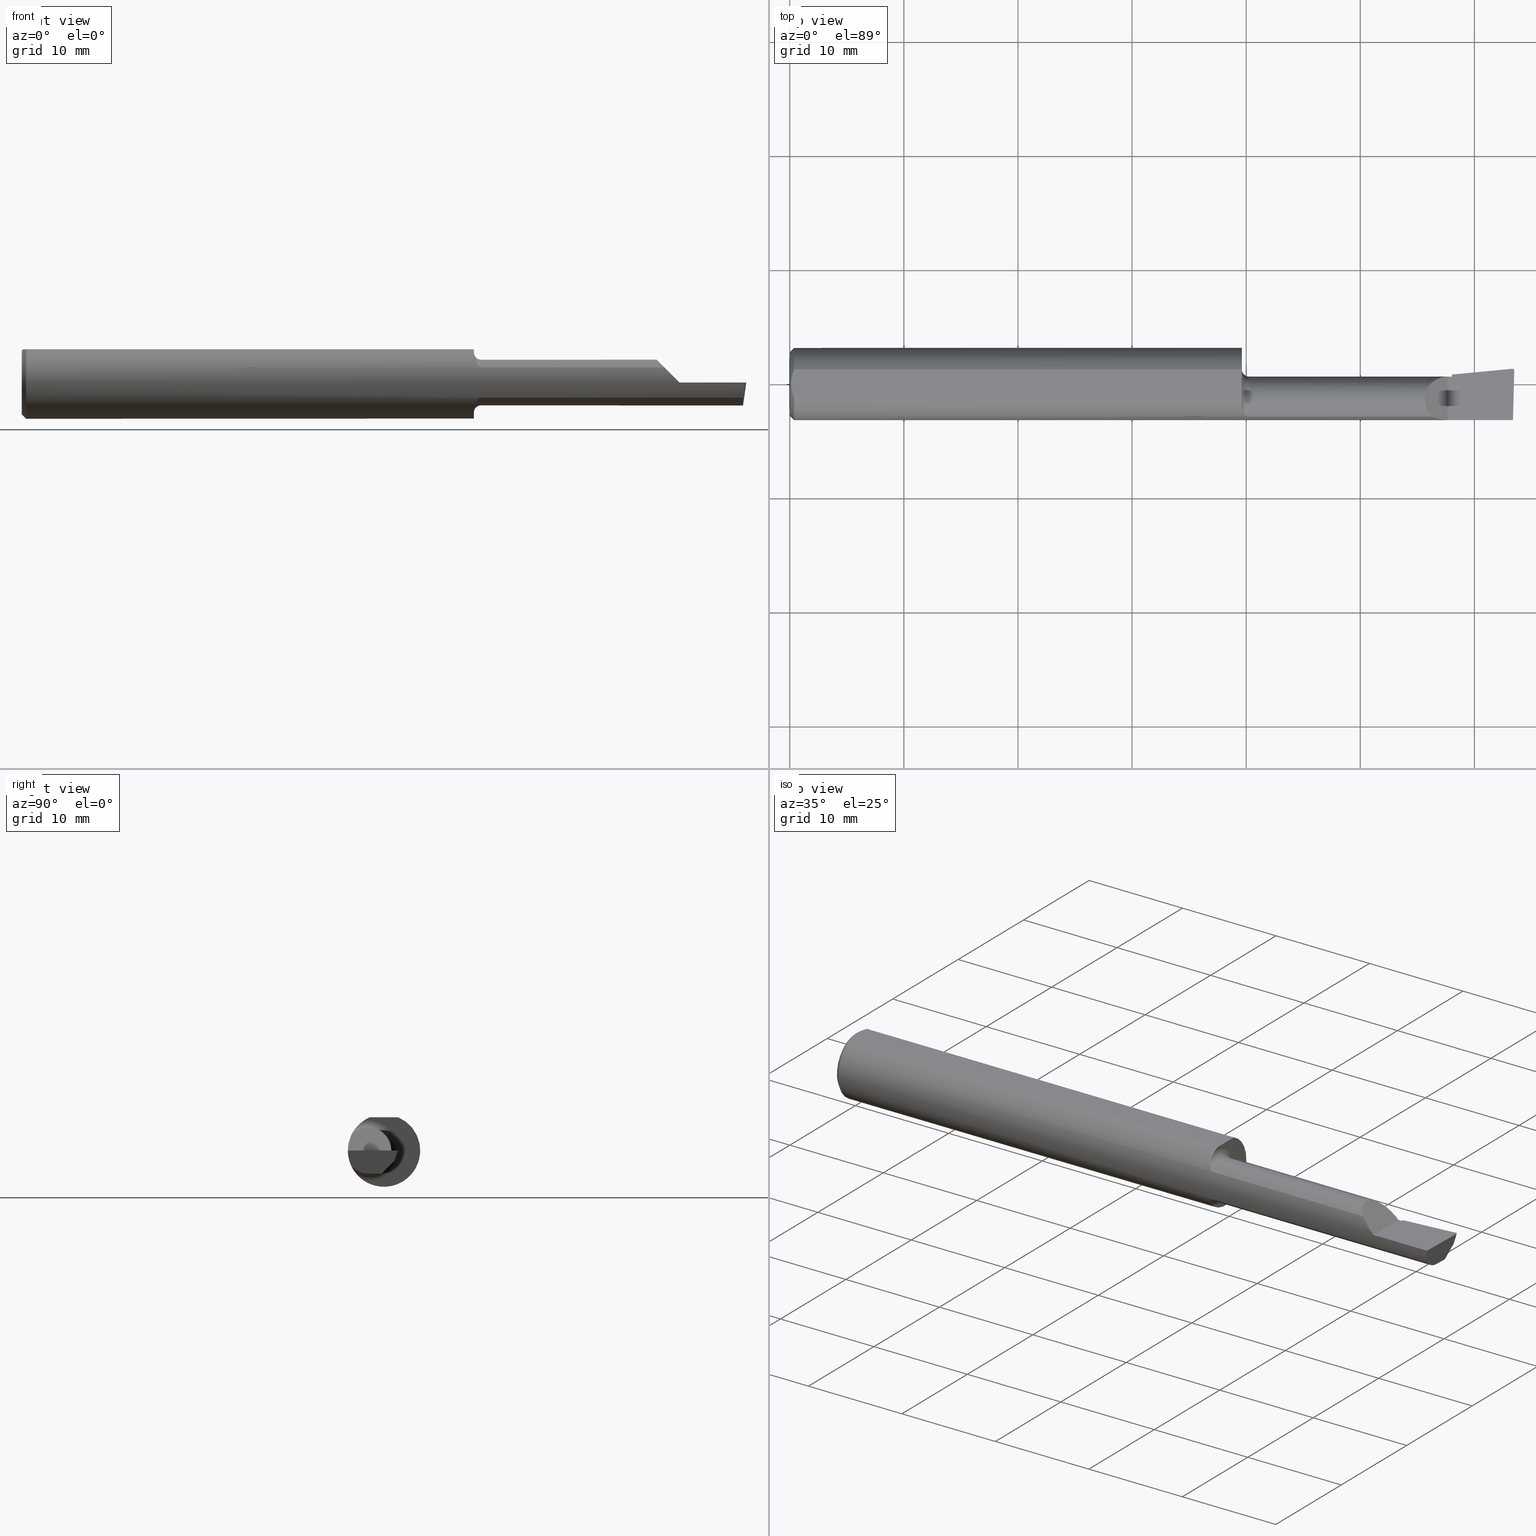
[diagram: canonical four-view strip — front | top / right | iso, engineering-drawing reading convention]
A machine part, canonical four-view strip (front | top / right | iso — engineering-drawing reading convention). The complete STEP part file that produces these views, byte-faithful:
ISO-10303-21;
HEADER;
FILE_DESCRIPTION (( 'STEP AP214' ),
    '1' );
FILE_NAME ('B180900R.STEP',
    '2020-05-08T22:48:41',
    ( '' ),
    ( '' ),
    'SwSTEP 2.0',
    'SolidWorks 2018',
    '' );
FILE_SCHEMA (( 'AUTOMOTIVE_DESIGN' ));
ENDSEC;

DATA;
#1 = CARTESIAN_POINT ( 'NONE',  ( 2.500000000000000000, 0.1748500000000000054, 0.1148500000000000076 ) ) ;
#2 =( NAMED_UNIT ( * ) SI_UNIT ( $, .STERADIAN. ) SOLID_ANGLE_UNIT ( ) );
#3 = VERTEX_POINT ( 'NONE', #16 ) ;
#4 = DIRECTION ( 'NONE',  ( 1.000000000000000000, 0.0000000000000000000, 0.0000000000000000000 ) ) ;
#5 = DIRECTION ( 'NONE',  ( 0.0000000000000000000, 0.9524855432518746223, -0.3045837978228342902 ) ) ;
#6 = EDGE_CURVE ( 'NONE', #158, #464, #121, .T. ) ;
#7 = SHAPE_DEFINITION_REPRESENTATION ( #553, #173 ) ;
#8 = CARTESIAN_POINT ( 'NONE',  ( 1.581867218484673376, -0.1130881303947560979, -0.05290831216931966147 ) ) ;
#9 = CARTESIAN_POINT ( 'NONE',  ( 0.005000000000000237761, 1.454187638523587873E-17, 0.1148500000000000076 ) ) ;
#10 = DIRECTION ( 'NONE',  ( -2.377784481325426399E-18, -0.6963153109074924352, -0.7177360153954949196 ) ) ;
#11 = EDGE_LOOP ( 'NONE', ( #334, #617, #608, #253 ) ) ;
#12 = AXIS2_PLACEMENT_3D ( 'NONE', #42, #296, #202 ) ;
#13 = DIRECTION ( 'NONE',  ( 1.000000000000000000, -3.414809992080329023E-18, 0.0000000000000000000 ) ) ;
#14 = VECTOR ( 'NONE', #669, 39.37007874015748143 ) ;
#15 = DIRECTION ( 'NONE',  ( 0.0000000000000000000, 0.0000000000000000000, 1.000000000000000000 ) ) ;
#16 = CARTESIAN_POINT ( 'NONE',  ( 1.560000000000000275, -0.07089166666666688044, 0.1027710761704001691 ) ) ;
#17 = ADVANCED_FACE ( 'NONE', ( #153 ), #470, .F. ) ;
#18 =( BOUNDED_CURVE ( )  B_SPLINE_CURVE ( 3, ( #439, #492, #452, #554 ),
 .UNSPECIFIED., .F., .F. ) 
 B_SPLINE_CURVE_WITH_KNOTS ( ( 4, 4 ),
 ( 5.435892245814752499, 7.853981633974484566 ),
 .UNSPECIFIED. ) 
 CURVE ( )  GEOMETRIC_REPRESENTATION_ITEM ( )  RATIONAL_B_SPLINE_CURVE ( ( 1.000000000000000000, 0.5692753596694920537, 0.5692753596694920537, 1.000000000000000000 ) ) 
 REPRESENTATION_ITEM ( '' )  );
#19 = CARTESIAN_POINT ( 'NONE',  ( 2.493823174557826317, 0.04399139898587250269, -0.02659586115756921651 ) ) ;
#20 = VERTEX_POINT ( 'NONE', #47 ) ;
#21 = DIRECTION ( 'NONE',  ( -1.000000000000000000, 3.414809992080329023E-18, 0.0000000000000000000 ) ) ;
#22 = CARTESIAN_POINT ( 'NONE',  ( 1.559999999999996723, -0.07604212793636101753, 0.09921827904968776035 ) ) ;
#23 = LINE ( 'NONE', #195, #167 ) ;
#24 = PLANE ( 'NONE',  #596 ) ;
#25 = VERTEX_POINT ( 'NONE', #385 ) ;
#26 = EDGE_LOOP ( 'NONE', ( #204, #431 ) ) ;
#27 = ORIENTED_EDGE ( 'NONE', *, *, #318, .F. ) ;
#28 = EDGE_CURVE ( 'NONE', #414, #618, #98, .T. ) ;
#29 = DIRECTION ( 'NONE',  ( -1.000000000000000000, 3.414809992080329023E-18, -0.0000000000000000000 ) ) ;
#30 = AXIS2_PLACEMENT_3D ( 'NONE', #137, #205, #151 ) ;
#31 = FACE_OUTER_BOUND ( 'NONE', #226, .T. ) ;
#32 = CARTESIAN_POINT ( 'NONE',  ( 2.234090882882975748, -0.1209466293052443159, 0.03590911711702327036 ) ) ;
#33 = ORIENTED_EDGE ( 'NONE', *, *, #577, .F. ) ;
#34 = CARTESIAN_POINT ( 'NONE',  ( 2.493310817358693754, 0.05249616680637383265, -5.124634811486028890E-17 ) ) ;
#35 = CARTESIAN_POINT ( 'NONE',  ( 0.01499999999999999424, 0.0000000000000000000, 0.0000000000000000000 ) ) ;
#36 = CARTESIAN_POINT ( 'NONE',  ( 0.01499999999999999424, 1.528971528735470422E-17, 0.1248500000000000026 ) ) ;
#37 = CARTESIAN_POINT ( 'NONE',  ( 1.560000000000000275, 0.1748500000000000054, 0.1148500000000000076 ) ) ;
#38 = DIRECTION ( 'NONE',  ( 0.0000000000000000000, 0.0000000000000000000, 1.000000000000000000 ) ) ;
#39 = AXIS2_PLACEMENT_3D ( 'NONE', #99, #149, #623 ) ;
#40 = LINE ( 'NONE', #141, #408 ) ;
#41 = CARTESIAN_POINT ( 'NONE',  ( 0.009410502401328815075, 0.03310661131402416191, 0.1148500000000000076 ) ) ;
#42 = CARTESIAN_POINT ( 'NONE',  ( 2.485278273515959313, -0.09572943287973835480, -0.08811753218725953962 ) ) ;
#43 = B_SPLINE_CURVE_WITH_KNOTS ( 'NONE', 3,
 ( #295, #512, #244, #41, #493, #75 ),
 .UNSPECIFIED., .F., .F.,
 ( 4, 2, 4 ),
 ( 0.002298356357403497086, 0.002932796277434359007, 0.003567236197465221362 ),
 .UNSPECIFIED. ) ;
#44 = EDGE_CURVE ( 'NONE', #618, #464, #177, .T. ) ;
#45 = CARTESIAN_POINT ( 'NONE',  ( 2.285000000000000142, 0.02514999999999996058, 9.802154982235647216E-16 ) ) ;
#46 = ORIENTED_EDGE ( 'NONE', *, *, #235, .T. ) ;
#47 = CARTESIAN_POINT ( 'NONE',  ( 2.492906680581910006, 0.05246699102467097114, -6.532122848641467145E-17 ) ) ;
#48 = ORIENTED_EDGE ( 'NONE', *, *, #555, .T. ) ;
#49 = VERTEX_POINT ( 'NONE', #620 ) ;
#50 = CARTESIAN_POINT ( 'NONE',  ( 1.560000000000000275, -0.07089166666666688044, -0.1027710761704001691 ) ) ;
#51 = VECTOR ( 'NONE', #240, 39.37007874015748854 ) ;
#52 = CARTESIAN_POINT ( 'NONE',  ( 1.560000000000000275, -0.04895916665957457392, 0.1148500000000000215 ) ) ;
#53 = FACE_OUTER_BOUND ( 'NONE', #26, .T. ) ;
#54 = CARTESIAN_POINT ( 'NONE',  ( 1.935000000000000053, -0.1133222222222223519, 0.05239843939104731063 ) ) ;
#55 = ORIENTED_EDGE ( 'NONE', *, *, #328, .T. ) ;
#56 = ORIENTED_EDGE ( 'NONE', *, *, #445, .T. ) ;
#57 = CARTESIAN_POINT ( 'NONE',  ( 2.285000000000000142, 0.03244785463752900695, 0.0000000000000000000 ) ) ;
#58 = LINE ( 'NONE', #181, #531 ) ;
#59 =( NAMED_UNIT ( * ) PLANE_ANGLE_UNIT ( ) SI_UNIT ( $, .RADIAN. ) );
#60 = LINE ( 'NONE', #54, #197 ) ;
#61 = LINE ( 'NONE', #335, #441 ) ;
#62 = DIRECTION ( 'NONE',  ( -1.000000000000000000, -0.0000000000000000000, -0.0000000000000000000 ) ) ;
#63 = DIRECTION ( 'NONE',  ( -0.1240019227990242501, -0.3022330132596687258, -0.9451342385281182867 ) ) ;
#64 = ORIENTED_EDGE ( 'NONE', *, *, #568, .F. ) ;
#65 = LENGTH_MEASURE_WITH_UNIT ( LENGTH_MEASURE( 0.02539999999999999897 ), #584 );
#66 = CARTESIAN_POINT ( 'NONE',  ( 0.01195732443765553168, -0.04120008761723500251, 0.1148500000000000215 ) ) ;
#67 = LINE ( 'NONE', #337, #376 ) ;
#68 = VECTOR ( 'NONE', #123, 39.37007874015748143 ) ;
#69 = EDGE_CURVE ( 'NONE', #103, #482, #637, .T. ) ;
#70 = CIRCLE ( 'NONE', #30, 0.1098499999999996424 ) ;
#71 = CARTESIAN_POINT ( 'NONE',  ( 2.477503890861344260, 0.007285921144409695030, -0.1200395610706566918 ) ) ;
#72 = ORIENTED_EDGE ( 'NONE', *, *, #433, .F. ) ;
#73 = MANIFOLD_SOLID_BREP ( 'BDF21A87-9C5D-4e39-A953-442CED5A3D4D-GAAFaceID16', #233 ) ;
#74 = EDGE_LOOP ( 'NONE', ( #567, #398, #593, #633 ) ) ;
#75 = CARTESIAN_POINT ( 'NONE',  ( 0.01499999999999999424, 0.04895916665957457392, 0.1148500000000000076 ) ) ;
#76 = CARTESIAN_POINT ( 'NONE',  ( 1.585000000000000187, -0.05399999999999999939, 0.0000000000000000000 ) ) ;
#77 = LINE ( 'NONE', #355, #90 ) ;
#78 = AXIS2_PLACEMENT_3D ( 'NONE', #412, #92, #476 ) ;
#79 = ORIENTED_EDGE ( 'NONE', *, *, #242, .T. ) ;
#80 = EDGE_CURVE ( 'NONE', #336, #486, #140, .T. ) ;
#81 = ORIENTED_EDGE ( 'NONE', *, *, #467, .F. ) ;
#82 = CARTESIAN_POINT ( 'NONE',  ( 2.494935772196837487, 0.03388506613407608892, -0.03712352112763148831 ) ) ;
#83 = LINE ( 'NONE', #605, #51 ) ;
#84 = EDGE_CURVE ( 'NONE', #186, #414, #550, .T. ) ;
#85 = ORIENTED_EDGE ( 'NONE', *, *, #169, .T. ) ;
#86 = ORIENTED_EDGE ( 'NONE', *, *, #248, .T. ) ;
#87 = ORIENTED_EDGE ( 'NONE', *, *, #467, .T. ) ;
#88 = VECTOR ( 'NONE', #118, 39.37007874015748143 ) ;
#89 = CARTESIAN_POINT ( 'NONE',  ( 2.285000000000000142, 0.01818157456899024971, -0.03247372465149767073 ) ) ;
#90 = VECTOR ( 'NONE', #347, 39.37007874015748143 ) ;
#91 = MECHANICAL_DESIGN_GEOMETRIC_PRESENTATION_REPRESENTATION (  '', ( #522 ), #297 ) ;
#92 = DIRECTION ( 'NONE',  ( 4.858719700838190352E-34, 8.537024980200821325E-17, 1.000000000000000000 ) ) ;
#93 = ORIENTED_EDGE ( 'NONE', *, *, #607, .T. ) ;
#94 = CARTESIAN_POINT ( 'NONE',  ( 1.578003366130775520, -0.1118869025553488189, 0.05540929543234566351 ) ) ;
#95 = VERTEX_POINT ( 'NONE', #263 ) ;
#96 = VECTOR ( 'NONE', #193, 39.37007874015748854 ) ;
#97 = DIRECTION ( 'NONE',  ( -1.000000000000000000, -0.0000000000000000000, -0.0000000000000000000 ) ) ;
#98 = B_SPLINE_CURVE_WITH_KNOTS ( 'NONE', 3,
 ( #665, #223, #8, #417, #363, #420, #269, #122, #115, #629, #472, #371, #432, #256 ),
 .UNSPECIFIED., .F., .F.,
 ( 4, 2, 2, 2, 2, 2, 4 ),
 ( 1.961860195742902937E-07, 0.0001199556417434004984, 0.0002397150974672266905, 0.0004792340089148647633, 0.0009582718318101505041, 0.001437309654705436462, 0.001916347477600722094 ),
 .UNSPECIFIED. ) ;
#99 = CARTESIAN_POINT ( 'NONE',  ( 2.500000000000000000, -0.2500000000000000555, -6.829619984160658046E-17 ) ) ;
#100 = LINE ( 'NONE', #36, #273 ) ;
#101 = B_SPLINE_CURVE_WITH_KNOTS ( 'NONE', 3,
 ( #289, #22, #447, #396, #642, #409, #489, #144, #215, #94, #160, #313, #560, #557 ),
 .UNSPECIFIED., .F., .F.,
 ( 4, 2, 2, 2, 2, 2, 4 ),
 ( 6.218642020841720630E-05, 0.0005341583913332135190, 0.001006130362458009832, 0.001478102333582805711, 0.001714088319145208638, 0.001832081311926402837, 0.001950074304707597470 ),
 .UNSPECIFIED. ) ;
#102 = DIRECTION ( 'NONE',  ( 0.7071067811865390240, 8.659560562355036396E-17, 0.7071067811865560104 ) ) ;
#103 = VERTEX_POINT ( 'NONE', #468 ) ;
#104 = ORIENTED_EDGE ( 'NONE', *, *, #28, .F. ) ;
#105 = VERTEX_POINT ( 'NONE', #157 ) ;
#106 = DIRECTION ( 'NONE',  ( 1.000000000000000000, -3.414809992080329023E-18, 0.0000000000000000000 ) ) ;
#107 = PLANE ( 'NONE',  #393 ) ;
#108 = DIRECTION ( 'NONE',  ( -1.000000000000000000, 3.414809992080329023E-18, 0.0000000000000000000 ) ) ;
#109 = ORIENTED_EDGE ( 'NONE', *, *, #286, .T. ) ;
#110 = ORIENTED_EDGE ( 'NONE', *, *, #169, .F. ) ;
#111 = CONICAL_SURFACE ( 'NONE', #520, 0.1248500000000000026, 0.7853981633974602694 ) ;
#112 = CARTESIAN_POINT ( 'NONE',  ( 0.01499999999999999424, 0.0000000000000000000, -0.1248500000000000026 ) ) ;
#113 = EDGE_CURVE ( 'NONE', #158, #634, #325, .T. ) ;
#114 = DIRECTION ( 'NONE',  ( 0.0000000000000000000, 0.0000000000000000000, -1.000000000000000000 ) ) ;
#115 = CARTESIAN_POINT ( 'NONE',  ( 1.566709462345916570, -0.1014961360546400848, -0.07295290821911699919 ) ) ;
#116 = DIRECTION ( 'NONE',  ( 1.000000000000000000, 0.0000000000000000000, 0.0000000000000000000 ) ) ;
#117 = AXIS2_PLACEMENT_3D ( 'NONE', #640, #234, #558 ) ;
#118 = DIRECTION ( 'NONE',  ( 1.000000000000000000, 0.0000000000000000000, 0.0000000000000000000 ) ) ;
#119 = VERTEX_POINT ( 'NONE', #559 ) ;
#120 = ORIENTED_EDGE ( 'NONE', *, *, #651, .T. ) ;
#121 = LINE ( 'NONE', #429, #88 ) ;
#122 = CARTESIAN_POINT ( 'NONE',  ( 1.568837986083220226, -0.1048226606062678534, -0.06804511026469603485 ) ) ;
#123 = DIRECTION ( 'NONE',  ( 0.0000000000000000000, 1.000000000000000000, -8.537024980200821325E-17 ) ) ;
#124 = LINE ( 'NONE', #538, #648 ) ;
#125 = ADVANCED_FACE ( 'NONE', ( #514 ), #410, .F. ) ;
#126 = DIRECTION ( 'NONE',  ( 0.0000000000000000000, -1.000000000000000000, 0.0000000000000000000 ) ) ;
#127 = DIRECTION ( 'NONE',  ( -0.1240019227990242223, -0.3022330132596686703, -0.9451342385281181757 ) ) ;
#128 = LENGTH_MEASURE_WITH_UNIT ( LENGTH_MEASURE( 0.02539999999999999897 ), #510 );
#129 = ADVANCED_FACE ( 'NONE', ( #142 ), #351, .F. ) ;
#130 = AXIS2_PLACEMENT_3D ( 'NONE', #406, #343, #189 ) ;
#131 = FACE_OUTER_BOUND ( 'NONE', #641, .T. ) ;
#132 = VECTOR ( 'NONE', #503, 39.37007874015748854 ) ;
#133 = CARTESIAN_POINT ( 'NONE',  ( 2.285000000000000142, -0.01935479767416500504, -0.07116482597324289006 ) ) ;
#134 = ORIENTED_EDGE ( 'NONE', *, *, #191, .F. ) ;
#135 = EDGE_CURVE ( 'NONE', #597, #49, #350, .T. ) ;
#136 = ORIENTED_EDGE ( 'NONE', *, *, #416, .F. ) ;
#137 = CARTESIAN_POINT ( 'NONE',  ( 0.0000000000000000000, 0.0000000000000000000, 0.0000000000000000000 ) ) ;
#138 = ADVANCED_FACE ( 'NONE', ( #179 ), #485, .T. ) ;
#139 = CARTESIAN_POINT ( 'NONE',  ( 2.251833290544947630, -0.1248500000000000165, 0.01816670945505163143 ) ) ;
#140 = LINE ( 'NONE', #304, #346 ) ;
#141 = CARTESIAN_POINT ( 'NONE',  ( 2.285000000000000142, 0.005014495618354278261, -0.04604586163080774674 ) ) ;
#142 = FACE_OUTER_BOUND ( 'NONE', #364, .T. ) ;
#143 =( BOUNDED_CURVE ( )  B_SPLINE_CURVE ( 3, ( #582, #219, #612, #260 ),
 .UNSPECIFIED., .F., .F. ) 
 B_SPLINE_CURVE_WITH_KNOTS ( ( 4, 4 ),
 ( 1.953092279228668682, 3.511516179717975472 ),
 .UNSPECIFIED. ) 
 CURVE ( )  GEOMETRIC_REPRESENTATION_ITEM ( )  RATIONAL_B_SPLINE_CURVE ( ( 1.000000000000000000, 0.8076450242550295977, 0.8076450242550295977, 1.000000000000000000 ) ) 
 REPRESENTATION_ITEM ( '' )  );
#144 = CARTESIAN_POINT ( 'NONE',  ( 1.573217602974940066, -0.1090277136498278843, 0.06089509507572534591 ) ) ;
#145 = ORIENTED_EDGE ( 'NONE', *, *, #533, .T. ) ;
#146 = CARTESIAN_POINT ( 'NONE',  ( 0.0000000000000000000, 0.0000000000000000000, 0.0000000000000000000 ) ) ;
#147 = DIRECTION ( 'NONE',  ( -3.414809992080329023E-18, -1.000000000000000000, 0.0000000000000000000 ) ) ;
#148 = DIRECTION ( 'NONE',  ( -1.000000000000000000, -0.0000000000000000000, -0.0000000000000000000 ) ) ;
#149 = DIRECTION ( 'NONE',  ( -4.194046792260684025E-16, 0.0000000000000000000, -1.000000000000000000 ) ) ;
#150 = PLANE ( 'NONE',  #481 ) ;
#151 = DIRECTION ( 'NONE',  ( 0.0000000000000000000, 0.0000000000000000000, 1.000000000000000000 ) ) ;
#152 = ORIENTED_EDGE ( 'NONE', *, *, #6, .T. ) ;
#153 = FACE_OUTER_BOUND ( 'NONE', #624, .T. ) ;
#154 = AXIS2_PLACEMENT_3D ( 'NONE', #146, #97, #611 ) ;
#155 = DIRECTION ( 'NONE',  ( 0.0000000000000000000, 1.000000000000000000, 0.0000000000000000000 ) ) ;
#156 = DIRECTION ( 'NONE',  ( -0.02617694830793667118, -0.9996573249755555945, 8.535148296544268902E-17 ) ) ;
#157 = CARTESIAN_POINT ( 'NONE',  ( 2.487472449114545014, -0.05399999999999999939, -0.07914999999999994262 ) ) ;
#158 = VERTEX_POINT ( 'NONE', #509 ) ;
#159 = LINE ( 'NONE', #601, #542 ) ;
#160 = CARTESIAN_POINT ( 'NONE',  ( 1.579156347344548239, -0.1123603976562050771, 0.05443691454869342000 ) ) ;
#161 = CARTESIAN_POINT ( 'NONE',  ( 2.486868858499483803, -0.07705019563525719595, -0.07914999999999994262 ) ) ;
#162 = FACE_OUTER_BOUND ( 'NONE', #319, .T. ) ;
#163 = CONICAL_SURFACE ( 'NONE', #130, 0.1248500000000000026, 0.7853981633974602694 ) ;
#164 = AXIS2_PLACEMENT_3D ( 'NONE', #76, #603, #453 ) ;
#165 = ORIENTED_EDGE ( 'NONE', *, *, #208, .F. ) ;
#166 = ORIENTED_EDGE ( 'NONE', *, *, #191, .T. ) ;
#167 = VECTOR ( 'NONE', #267, 39.37007874015748854 ) ;
#168 = CARTESIAN_POINT ( 'NONE',  ( 2.509953961983671711, 0.05410845752520201946, -6.829619984160658046E-17 ) ) ;
#169 = EDGE_CURVE ( 'NONE', #211, #220, #314, .T. ) ;
#170 = DIRECTION ( 'NONE',  ( -0.9953961983671800740, -0.09584575252021031166, 0.0000000000000000000 ) ) ;
#171 = DIRECTION ( 'NONE',  ( 0.0000000000000000000, 0.0000000000000000000, -1.000000000000000000 ) ) ;
#172 = AXIS2_PLACEMENT_3D ( 'NONE', #630, #615, #614 ) ;
#173 = ADVANCED_BREP_SHAPE_REPRESENTATION ( 'B180900R', ( #73, #426 ), #370 ) ;
#174 = AXIS2_PLACEMENT_3D ( 'NONE', #661, #606, #650 ) ;
#175 = CARTESIAN_POINT ( 'NONE',  ( 2.492906680581910006, 0.05246699102467097114, -6.532122848641467145E-17 ) ) ;
#176 = ORIENTED_EDGE ( 'NONE', *, *, #594, .F. ) ;
#177 = CIRCLE ( 'NONE', #484, 0.1248500000000000026 ) ;
#178 = AXIS2_PLACEMENT_3D ( 'NONE', #643, #21, #147 ) ;
#179 = FACE_OUTER_BOUND ( 'NONE', #185, .T. ) ;
#180 = ADVANCED_FACE ( 'NONE', ( #236 ), #506, .F. ) ;
#181 = CARTESIAN_POINT ( 'NONE',  ( 2.500000000000000000, -0.05399999999999999939, -0.07914999999999994262 ) ) ;
#182 = EDGE_CURVE ( 'NONE', #20, #336, #77, .T. ) ;
#183 = VERTEX_POINT ( 'NONE', #654 ) ;
#184 = DIRECTION ( 'NONE',  ( 0.0000000000000000000, -1.000000000000000000, 0.0000000000000000000 ) ) ;
#185 = EDGE_LOOP ( 'NONE', ( #645, #166, #86, #239, #655, #81, #64, #48, #136, #488, #152, #382, #104 ) ) ;
#186 = VERTEX_POINT ( 'NONE', #247 ) ;
#187 = CIRCLE ( 'NONE', #172, 0.07914999999999995650 ) ;
#188 = AXIS2_PLACEMENT_3D ( 'NONE', #438, #547, #184 ) ;
#189 = DIRECTION ( 'NONE',  ( 0.0000000000000000000, 0.0000000000000000000, -1.000000000000000000 ) ) ;
#190 = CARTESIAN_POINT ( 'NONE',  ( 2.270000000000000018, -0.1248500000000000165, 2.816687638038912303E-17 ) ) ;
#191 = EDGE_CURVE ( 'NONE', #183, #25, #329, .T. ) ;
#192 = ORIENTED_EDGE ( 'NONE', *, *, #368, .F. ) ;
#193 = DIRECTION ( 'NONE',  ( 0.1240019227990242223, 0.3022330132596687258, 0.9451342385281181757 ) ) ;
#194 = PRESENTATION_STYLE_ASSIGNMENT (( #460 ) ) ;
#195 = CARTESIAN_POINT ( 'NONE',  ( 2.285000000000000142, 0.02898381944558133666, -0.01127818590082938985 ) ) ;
#196 = DIRECTION ( 'NONE',  ( 1.000000000000000000, -3.414809992080329023E-18, 0.0000000000000000000 ) ) ;
#197 = VECTOR ( 'NONE', #106, 39.37007874015748143 ) ;
#198 = FACE_OUTER_BOUND ( 'NONE', #271, .T. ) ;
#199 = CARTESIAN_POINT ( 'NONE',  ( 2.285000000000000142, -0.05399999999999999939, -0.07914999999999994262 ) ) ;
#200 = CARTESIAN_POINT ( 'NONE',  ( 2.495458699183907392, -0.006836787764517319663, -0.07914999999999994262 ) ) ;
#201 = CARTESIAN_POINT ( 'NONE',  ( 0.01499999999999999424, 0.0000000000000000000, 0.0000000000000000000 ) ) ;
#202 = DIRECTION ( 'NONE',  ( 0.1219104985253571388, 0.0000000000000000000, 0.9925410975618585985 ) ) ;
#203 = B_SPLINE_CURVE_WITH_KNOTS ( 'NONE', 3,
 ( #405, #66, #469, #662, #473, #574 ),
 .UNSPECIFIED., .F., .F.,
 ( 4, 2, 4 ),
 ( 0.001029394377391489035, 0.001663875367397493060, 0.002298356357403497086 ),
 .UNSPECIFIED. ) ;
#204 = ORIENTED_EDGE ( 'NONE', *, *, #303, .T. ) ;
#205 = DIRECTION ( 'NONE',  ( -1.000000000000000000, -0.0000000000000000000, -0.0000000000000000000 ) ) ;
#206 = CARTESIAN_POINT ( 'NONE',  ( 2.488690395572167979, -0.007488501277203572434, -0.07914999999999995650 ) ) ;
#207 = FACE_OUTER_BOUND ( 'NONE', #430, .T. ) ;
#208 = EDGE_CURVE ( 'NONE', #597, #666, #500, .T. ) ;
#209 = ORIENTED_EDGE ( 'NONE', *, *, #242, .F. ) ;
#210 = FILL_AREA_STYLE ('',( #270 ) ) ;
#211 = VERTEX_POINT ( 'NONE', #291 ) ;
#212 = SURFACE_STYLE_FILL_AREA ( #249 ) ;
#213 = AXIS2_PLACEMENT_3D ( 'NONE', #545, #590, #595 ) ;
#214 =( BOUNDED_CURVE ( )  B_SPLINE_CURVE ( 3, ( #647, #19, #649, #82 ),
 .UNSPECIFIED., .F., .F. ) 
 B_SPLINE_CURVE_WITH_KNOTS ( ( 4, 4 ),
 ( 3.156599629463092693, 4.715023529952360626 ),
 .UNSPECIFIED. ) 
 CURVE ( )  GEOMETRIC_REPRESENTATION_ITEM ( )  RATIONAL_B_SPLINE_CURVE ( ( 1.000000000000000000, 0.8076450242550388126, 0.8076450242550388126, 1.000000000000000000 ) ) 
 REPRESENTATION_ITEM ( '' )  );
#215 = CARTESIAN_POINT ( 'NONE',  ( 1.574891482046761437, -0.1103130882036816862, 0.05851436580809123850 ) ) ;
#216 = CARTESIAN_POINT ( 'NONE',  ( 2.285000000000000142, 0.005014495618354278261, -0.04604586163080774674 ) ) ;
#217 = ADVANCED_FACE ( 'NONE', ( #369 ), #163, .T. ) ;
#218 = EDGE_LOOP ( 'NONE', ( #639, #436, #241, #288, #120 ) ) ;
#219 = CARTESIAN_POINT ( 'NONE',  ( 2.499910038027521875, 0.04971449087509938192, -5.401409214261198838E-17 ) ) ;
#220 = VERTEX_POINT ( 'NONE', #287 ) ;
#221 = EDGE_CURVE ( 'NONE', #399, #20, #387, .T. ) ;
#222 = DIRECTION ( 'NONE',  ( 1.000000000000000000, 0.0000000000000000000, 0.0000000000000000000 ) ) ;
#223 = CARTESIAN_POINT ( 'NONE',  ( 1.583397973893800659, -0.1133222222222222964, -0.05239843939104738696 ) ) ;
#224 = SURFACE_SIDE_STYLE ('',( #540 ) ) ;
#225 = ORIENTED_EDGE ( 'NONE', *, *, #69, .T. ) ;
#226 = EDGE_LOOP ( 'NONE', ( #326, #254, #442, #93, #79, #225, #356, #374, #525, #413 ) ) ;
#227 = COLOUR_RGB ( '',0.7529411764705882248, 0.7529411764705882248, 0.7529411764705882248 ) ;
#228 = EDGE_CURVE ( 'NONE', #546, #507, #498, .T. ) ;
#229 = PRODUCT_RELATED_PRODUCT_CATEGORY ( 'part', '', ( #352 ) ) ;
#230 = DIRECTION ( 'NONE',  ( 0.0000000000000000000, 0.0000000000000000000, 1.000000000000000000 ) ) ;
#231 = CARTESIAN_POINT ( 'NONE',  ( 1.560000000000000275, 0.04895916665957456004, 0.1148500000000000076 ) ) ;
#232 = EDGE_LOOP ( 'NONE', ( #87, #599, #320, #299 ) ) ;
#233 = CLOSED_SHELL ( 'NONE', ( #237, #217, #532, #339, #638, #138, #17, #539, #129, #587, #589, #125, #338, #549, #592, #628, #331, #180, #632 ) ) ;
#234 = DIRECTION ( 'NONE',  ( -0.1240019227990242501, -0.3022330132596687258, -0.9451342385281182867 ) ) ;
#235 = EDGE_CURVE ( 'NONE', #220, #211, #70, .T. ) ;
#236 = FACE_OUTER_BOUND ( 'NONE', #475, .T. ) ;
#237 = ADVANCED_FACE ( 'NONE', ( #198 ), #440, .T. ) ;
#238 = EDGE_CURVE ( 'NONE', #220, #634, #580, .T. ) ;
#239 = ORIENTED_EDGE ( 'NONE', *, *, #228, .T. ) ;
#240 = DIRECTION ( 'NONE',  ( 0.02617694830793667465, 0.9996573249755555945, -1.081567693923466137E-17 ) ) ;
#241 = ORIENTED_EDGE ( 'NONE', *, *, #238, .T. ) ;
#242 = EDGE_CURVE ( 'NONE', #507, #103, #18, .T. ) ;
#243 = VERTEX_POINT ( 'NONE', #133 ) ;
#244 = CARTESIAN_POINT ( 'NONE',  ( 0.005947935873631425563, 0.01679708999422678192, 0.1148499999999999938 ) ) ;
#245 = CARTESIAN_POINT ( 'NONE',  ( 2.510715839651727954, 0.04619605541595013520, -0.02600000000000000228 ) ) ;
#246 = CARTESIAN_POINT ( 'NONE',  ( 2.493107549887202623, -0.1248500000000000026, -0.01816670945505170429 ) ) ;
#247 = CARTESIAN_POINT ( 'NONE',  ( 1.585000000000000187, -0.1133222222222222825, 0.05239843939104733145 ) ) ;
#248 = EDGE_CURVE ( 'NONE', #25, #546, #586, .T. ) ;
#249 = FILL_AREA_STYLE ('',( #379 ) ) ;
#250 = CARTESIAN_POINT ( 'NONE',  ( 2.489495472034650714, 0.04415276641570021338, -0.02600000000000000228 ) ) ;
#251 = VERTEX_POINT ( 'NONE', #275 ) ;
#252 = AXIS2_PLACEMENT_3D ( 'NONE', #404, #487, #126 ) ;
#253 = ORIENTED_EDGE ( 'NONE', *, *, #491, .F. ) ;
#254 = ORIENTED_EDGE ( 'NONE', *, *, #458, .T. ) ;
#255 = DIRECTION ( 'NONE',  ( -0.0000000000000000000, 1.000000000000000000, -0.0000000000000000000 ) ) ;
#256 = CARTESIAN_POINT ( 'NONE',  ( 1.560000000000000275, -0.07089166666666688044, -0.1027710761704001691 ) ) ;
#257 = APPLICATION_PROTOCOL_DEFINITION ( 'draft international standard', 'automotive_design', 1998, #264 ) ;
#258 =( BOUNDED_CURVE ( )  B_SPLINE_CURVE ( 3, ( #622, #310, #619, #511 ),
 .UNSPECIFIED., .F., .T. ) 
 B_SPLINE_CURVE_WITH_KNOTS ( ( 4, 4 ),
 ( 3.064097098354486182, 3.156599629463092693 ),
 .UNSPECIFIED. ) 
 CURVE ( )  GEOMETRIC_REPRESENTATION_ITEM ( )  RATIONAL_B_SPLINE_CURVE ( ( 1.000000000000000000, 0.9992870672494007511, 0.9992870672494007511, 1.000000000000000000 ) ) 
 REPRESENTATION_ITEM ( '' )  );
#259 = EDGE_CURVE ( 'NONE', #307, #243, #40, .T. ) ;
#260 = CARTESIAN_POINT ( 'NONE',  ( 2.493512870449331675, 0.05249616680637383959, -5.122214988120493535E-17 ) ) ;
#261 = VECTOR ( 'NONE', #255, 39.37007874015748143 ) ;
#262 = STYLED_ITEM ( 'NONE', ( #332 ), #173 ) ;
#263 = CARTESIAN_POINT ( 'NONE',  ( 2.285000000000000142, -0.05399999999999999939, -0.07914999999999994262 ) ) ;
#264 = APPLICATION_CONTEXT ( 'automotive_design' ) ;
#265 = ORIENTED_EDGE ( 'NONE', *, *, #278, .F. ) ;
#266 = LINE ( 'NONE', #465, #480 ) ;
#267 = DIRECTION ( 'NONE',  ( -1.002614254341036985E-18, -0.2936076258024056806, -0.9559260233253797923 ) ) ;
#268 = AXIS2_PLACEMENT_3D ( 'NONE', #613, #196, #400 ) ;
#269 = CARTESIAN_POINT ( 'NONE',  ( 1.573205018706407499, -0.1090156405642971477, -0.06091562844815642808 ) ) ;
#270 = FILL_AREA_STYLE_COLOUR ( '', #462 ) ;
#271 = EDGE_LOOP ( 'NONE', ( #280, #56, #496, #274 ) ) ;
#272 = PRODUCT_DEFINITION ( 'UNKNOWN', '', #552, #344 ) ;
#273 = VECTOR ( 'NONE', #102, 39.37007874015748143 ) ;
#274 = ORIENTED_EDGE ( 'NONE', *, *, #182, .F. ) ;
#275 = CARTESIAN_POINT ( 'NONE',  ( 0.01499999999999999077, -0.04895916665957456004, 0.1148500000000000215 ) ) ;
#276 = CARTESIAN_POINT ( 'NONE',  ( 4.111069666048746882E-31, -0.1248499999999999888, 9.802154982235641300E-16 ) ) ;
#277 = LINE ( 'NONE', #199, #68 ) ;
#278 = EDGE_CURVE ( 'NONE', #243, #95, #572, .T. ) ;
#279 = CARTESIAN_POINT ( 'NONE',  ( 0.01499999999999999424, 0.0000000000000000000, 0.0000000000000000000 ) ) ;
#280 = ORIENTED_EDGE ( 'NONE', *, *, #221, .F. ) ;
#281 = EDGE_LOOP ( 'NONE', ( #372, #653, #397, #176, #389, #635, #327, #448 ) ) ;
#282 = CARTESIAN_POINT ( 'NONE',  ( 2.500086462864390846, 0.04643897437746657975, 0.002134693520066783482 ) ) ;
#283 = VECTOR ( 'NONE', #345, 39.37007874015748143 ) ;
#284 = CARTESIAN_POINT ( 'NONE',  ( 2.217601560608951861, -0.1133222222222222686, 0.05239843939104743553 ) ) ;
#285 = LINE ( 'NONE', #604, #261 ) ;
#286 = EDGE_CURVE ( 'NONE', #3, #618, #530, .T. ) ;
#287 = CARTESIAN_POINT ( 'NONE',  ( 0.0000000000000000000, 0.0000000000000000000, -0.1098499999999996424 ) ) ;
#288 = ORIENTED_EDGE ( 'NONE', *, *, #416, .T. ) ;
#289 = CARTESIAN_POINT ( 'NONE',  ( 1.560000000000000275, -0.07089166666666688044, 0.1027710761704001691 ) ) ;
#290 = DIRECTION ( 'NONE',  ( -1.000000000000000000, -0.0000000000000000000, -0.0000000000000000000 ) ) ;
#291 = CARTESIAN_POINT ( 'NONE',  ( 0.0000000000000000000, 1.437123018799416669E-17, 0.1098499999999996424 ) ) ;
#292 = LENGTH_MEASURE_WITH_UNIT ( LENGTH_MEASURE( 0.02539999999999999897 ), #407 );
#293 = DIRECTION ( 'NONE',  ( 0.0000000000000000000, 0.0000000000000000000, 1.000000000000000000 ) ) ;
#294 = CARTESIAN_POINT ( 'NONE',  ( 1.560000000000000275, 0.0000000000000000000, 0.0000000000000000000 ) ) ;
#295 = CARTESIAN_POINT ( 'NONE',  ( 0.005000000000000237761, 1.454187638523587873E-17, 0.1148500000000000076 ) ) ;
#296 = DIRECTION ( 'NONE',  ( -0.9922060308645370696, 0.02598182930475613148, 0.1218693434052215002 ) ) ;
#297 =( GEOMETRIC_REPRESENTATION_CONTEXT ( 3 ) GLOBAL_UNCERTAINTY_ASSIGNED_CONTEXT ( ( #451 ) ) GLOBAL_UNIT_ASSIGNED_CONTEXT ( ( #316, #578, #513 ) ) REPRESENTATION_CONTEXT ( 'NONE', 'WORKASPACE' ) );
#298 = CARTESIAN_POINT ( 'NONE',  ( 2.702822108735688752E-19, 0.02514999999999991895, 9.802154982235641300E-16 ) ) ;
#299 = ORIENTED_EDGE ( 'NONE', *, *, #286, .F. ) ;
#300 = PLANE ( 'NONE',  #39 ) ;
#301 = FACE_OUTER_BOUND ( 'NONE', #505, .T. ) ;
#302 = PRODUCT_CONTEXT ( 'NONE', #573, 'mechanical' ) ;
#303 = EDGE_CURVE ( 'NONE', #243, #307, #561, .T. ) ;
#304 = CARTESIAN_POINT ( 'NONE',  ( 2.510715839651727954, 0.04619605541595013520, -0.02600000000000000228 ) ) ;
#305 =( NAMED_UNIT ( * ) SI_UNIT ( $, .STERADIAN. ) SOLID_ANGLE_UNIT ( ) );
#306 = AXIS2_PLACEMENT_3D ( 'NONE', #1, #528, #434 ) ;
#307 = VERTEX_POINT ( 'NONE', #89 ) ;
#308 = DIRECTION ( 'NONE',  ( -3.414809992080329023E-18, -1.000000000000000000, 0.0000000000000000000 ) ) ;
#309 = CIRCLE ( 'NONE', #659, 0.1248500000000000026 ) ;
#310 = CARTESIAN_POINT ( 'NONE',  ( 2.489697401361981033, 0.04417220999843204932, -0.02599999999999998493 ) ) ;
#311 = FACE_OUTER_BOUND ( 'NONE', #535, .T. ) ;
#312 = VECTOR ( 'NONE', #598, 39.37007874015748143 ) ;
#313 = CARTESIAN_POINT ( 'NONE',  ( 1.581855009147952407, -0.1130869929873387497, 0.05291095013438983780 ) ) ;
#314 = CIRCLE ( 'NONE', #411, 0.1098499999999996424 ) ;
#315 = AXIS2_PLACEMENT_3D ( 'NONE', #245, #375, #373 ) ;
#316 =( CONVERSION_BASED_UNIT ( 'INCH', #128 ) LENGTH_UNIT ( ) NAMED_UNIT ( #585 ) );
#317 = ORIENTED_EDGE ( 'NONE', *, *, #651, .F. ) ;
#318 = EDGE_CURVE ( 'NONE', #95, #49, #277, .T. ) ;
#319 = EDGE_LOOP ( 'NONE', ( #403, #145, #518, #165, #366, #354, #668, #516 ) ) ;
#320 = ORIENTED_EDGE ( 'NONE', *, *, #28, .T. ) ;
#321 = DIRECTION ( 'NONE',  ( 0.9953961983671787417, 0.09584575252022459191, -4.174738232790345673E-16 ) ) ;
#322 = DIMENSIONAL_EXPONENTS ( 1.000000000000000000, 0.0000000000000000000, 0.0000000000000000000, 0.0000000000000000000, 0.0000000000000000000, 0.0000000000000000000, 0.0000000000000000000 ) ;
#323 = FACE_OUTER_BOUND ( 'NONE', #218, .T. ) ;
#324 = DIRECTION ( 'NONE',  ( -0.09165774897393338949, 0.9519021185660615503, -0.2923717047227299415 ) ) ;
#325 = CIRCLE ( 'NONE', #419, 0.1248500000000000026 ) ;
#326 = ORIENTED_EDGE ( 'NONE', *, *, #551, .F. ) ;
#327 = ORIENTED_EDGE ( 'NONE', *, *, #544, .F. ) ;
#328 = EDGE_CURVE ( 'NONE', #243, #49, #490, .T. ) ;
#329 =( BOUNDED_CURVE ( )  B_SPLINE_CURVE ( 3, ( #502, #652, #246, #333 ),
 .UNSPECIFIED., .F., .F. ) 
 B_SPLINE_CURVE_WITH_KNOTS ( ( 4, 4 ),
 ( 0.9276418632516072460, 1.360746882514361156 ),
 .UNSPECIFIED. ) 
 CURVE ( )  GEOMETRIC_REPRESENTATION_ITEM ( )  RATIONAL_B_SPLINE_CURVE ( ( 1.000000000000000000, 0.9844293286710340540, 0.9844293286710340540, 1.000000000000000000 ) ) 
 REPRESENTATION_ITEM ( '' )  );
#330 = AXIS2_PLACEMENT_3D ( 'NONE', #660, #222, #171 ) ;
#331 = ADVANCED_FACE ( 'NONE', ( #53 ), #24, .F. ) ;
#332 = PRESENTATION_STYLE_ASSIGNMENT (( #380 ) ) ;
#333 = CARTESIAN_POINT ( 'NONE',  ( 2.495338905960690301, -0.1248500000000000582, -6.632093541198147639E-17 ) ) ;
#334 = ORIENTED_EDGE ( 'NONE', *, *, #594, .T. ) ;
#335 = CARTESIAN_POINT ( 'NONE',  ( 1.935000000000000053, -0.1133222222222223519, -0.05239843939104731063 ) ) ;
#336 = VERTEX_POINT ( 'NONE', #250 ) ;
#337 = CARTESIAN_POINT ( 'NONE',  ( 2.285000000000000142, -0.2500000000000000555, 2.187580619199813988E-17 ) ) ;
#338 = ADVANCED_FACE ( 'NONE', ( #131 ), #353, .T. ) ;
#339 = ADVANCED_FACE ( 'NONE', ( #207 ), #591, .T. ) ;
#340 = DIRECTION ( 'NONE',  ( -1.000000000000000000, -0.0000000000000000000, -0.0000000000000000000 ) ) ;
#341 = ORIENTED_EDGE ( 'NONE', *, *, #6, .F. ) ;
#342 = LINE ( 'NONE', #216, #636 ) ;
#343 = DIRECTION ( 'NONE',  ( 1.000000000000000000, 0.0000000000000000000, 0.0000000000000000000 ) ) ;
#344 = PRODUCT_DEFINITION_CONTEXT ( 'detailed design', #264, 'design' ) ;
#345 = DIRECTION ( 'NONE',  ( -1.000000000000000000, -0.0000000000000000000, -0.0000000000000000000 ) ) ;
#346 = VECTOR ( 'NONE', #170, 39.37007874015748854 ) ;
#347 = DIRECTION ( 'NONE',  ( -0.1240019227990242362, -0.3022330132596687258, -0.9451342385281181757 ) ) ;
#348 = VECTOR ( 'NONE', #388, 39.37007874015748854 ) ;
#349 = CARTESIAN_POINT ( 'NONE',  ( 2.487472449114545014, -0.05399999999999999939, -0.07914999999999994262 ) ) ;
#350 = LINE ( 'NONE', #200, #132 ) ;
#351 = PLANE ( 'NONE',  #377 ) ;
#352 = PRODUCT ( 'B180900R', 'B180900R', '', ( #302 ) ) ;
#353 = PLANE ( 'NONE',  #213 ) ;
#354 = ORIENTED_EDGE ( 'NONE', *, *, #328, .F. ) ;
#355 = CARTESIAN_POINT ( 'NONE',  ( 2.489630139748174376, 0.04448099542964070729, -0.02497357182854490626 ) ) ;
#356 = ORIENTED_EDGE ( 'NONE', *, *, #501, .T. ) ;
#357 = CARTESIAN_POINT ( 'NONE',  ( 2.490095884891770694, 0.04416786174452203007, -0.02604403198038585110 ) ) ;
#358 = DIRECTION ( 'NONE',  ( -2.377784481325426399E-18, -0.6963153109074924352, -0.7177360153954949196 ) ) ;
#359 = LINE ( 'NONE', #367, #657 ) ;
#360 = EDGE_CURVE ( 'NONE', #541, #666, #214, .T. ) ;
#361 = CYLINDRICAL_SURFACE ( 'NONE', #534, 0.006500000000000000569 ) ;
#362 = CARTESIAN_POINT ( 'NONE',  ( 1.585000000000000187, -0.1133222222222222131, -0.05239843939104739390 ) ) ;
#363 = CARTESIAN_POINT ( 'NONE',  ( 1.578018389903473873, -0.1118940578004066627, -0.05539504279880008014 ) ) ;
#364 = EDGE_LOOP ( 'NONE', ( #209, #576, #384 ) ) ;
#365 =( CONVERSION_BASED_UNIT ( 'INCH', #292 ) LENGTH_UNIT ( ) NAMED_UNIT ( #322 ) );
#366 = ORIENTED_EDGE ( 'NONE', *, *, #135, .T. ) ;
#367 = CARTESIAN_POINT ( 'NONE',  ( 0.0000000000000000000, -0.04895916665957456004, 0.1148500000000000076 ) ) ;
#368 = EDGE_CURVE ( 'NONE', #25, #644, #83, .T. ) ;
#369 = FACE_OUTER_BOUND ( 'NONE', #588, .T. ) ;
#370 =( GEOMETRIC_REPRESENTATION_CONTEXT ( 3 ) GLOBAL_UNCERTAINTY_ASSIGNED_CONTEXT ( ( #483 ) ) GLOBAL_UNIT_ASSIGNED_CONTEXT ( ( #365, #59, #305 ) ) REPRESENTATION_CONTEXT ( 'NONE', 'WORKASPACE' ) );
#371 = CARTESIAN_POINT ( 'NONE',  ( 1.560429435078794835, -0.08094870196673342733, -0.09525057567498892985 ) ) ;
#372 = ORIENTED_EDGE ( 'NONE', *, *, #368, .T. ) ;
#373 = DIRECTION ( 'NONE',  ( 0.0000000000000000000, 0.6963153109074923242, 0.7177360153954949196 ) ) ;
#374 = ORIENTED_EDGE ( 'NONE', *, *, #303, .F. ) ;
#375 = DIRECTION ( 'NONE',  ( -0.06894566448119622548, 0.7160281025913036723, -0.6946583704589932573 ) ) ;
#376 = VECTOR ( 'NONE', #444, 39.37007874015748143 ) ;
#377 = AXIS2_PLACEMENT_3D ( 'NONE', #456, #658, #402 ) ;
#378 = PLANE ( 'NONE',  #315 ) ;
#379 = FILL_AREA_STYLE_COLOUR ( '', #227 ) ;
#380 = SURFACE_STYLE_USAGE ( .BOTH. , #224 ) ;
#381 = ORIENTED_EDGE ( 'NONE', *, *, #44, .T. ) ;
#382 = ORIENTED_EDGE ( 'NONE', *, *, #44, .F. ) ;
#383 = EDGE_CURVE ( 'NONE', #482, #119, #67, .T. ) ;
#384 = ORIENTED_EDGE ( 'NONE', *, *, #544, .T. ) ;
#385 = CARTESIAN_POINT ( 'NONE',  ( 2.495338905960690301, -0.1248500000000000582, -6.632093541198147639E-17 ) ) ;
#386 = AXIS2_PLACEMENT_3D ( 'NONE', #294, #461, #155 ) ;
#387 =( BOUNDED_CURVE ( )  B_SPLINE_CURVE ( 3, ( #548, #34, #663, #175 ),
 .UNSPECIFIED., .F., .F. ) 
 B_SPLINE_CURVE_WITH_KNOTS ( ( 4, 4 ),
 ( 3.511516179717975472, 3.604018710826573546 ),
 .UNSPECIFIED. ) 
 CURVE ( )  GEOMETRIC_REPRESENTATION_ITEM ( )  RATIONAL_B_SPLINE_CURVE ( ( 1.000000000000000000, 0.9992870672494007511, 0.9992870672494007511, 1.000000000000000000 ) ) 
 REPRESENTATION_ITEM ( '' )  );
#388 = DIRECTION ( 'NONE',  ( 0.1053106618242780901, 0.6976485211320145874, 0.7086580314005094250 ) ) ;
#389 = ORIENTED_EDGE ( 'NONE', *, *, #383, .F. ) ;
#390 = ORIENTED_EDGE ( 'NONE', *, *, #394, .F. ) ;
#391 = DIRECTION ( 'NONE',  ( -3.414809992080329023E-18, -1.000000000000000000, 4.882484975808304553E-17 ) ) ;
#392 = CYLINDRICAL_SURFACE ( 'NONE', #504, 0.07914999999999992875 ) ;
#393 = AXIS2_PLACEMENT_3D ( 'NONE', #168, #324, #523 ) ;
#394 = EDGE_CURVE ( 'NONE', #464, #479, #526, .T. ) ;
#395 = DIMENSIONAL_EXPONENTS ( 1.000000000000000000, 0.0000000000000000000, 0.0000000000000000000, 0.0000000000000000000, 0.0000000000000000000, 0.0000000000000000000, 0.0000000000000000000 ) ;
#396 = CARTESIAN_POINT ( 'NONE',  ( 1.562066153268989011, -0.08982957272875709276, 0.08692514756739024018 ) ) ;
#397 = ORIENTED_EDGE ( 'NONE', *, *, #221, .T. ) ;
#398 = ORIENTED_EDGE ( 'NONE', *, *, #577, .T. ) ;
#399 = VERTEX_POINT ( 'NONE', #437 ) ;
#400 = DIRECTION ( 'NONE',  ( 0.0000000000000000000, -1.000000000000000000, 0.0000000000000000000 ) ) ;
#401 = DIRECTION ( 'NONE',  ( -2.377784481325426399E-18, -0.6963153109074924352, -0.7177360153954949196 ) ) ;
#402 = DIRECTION ( 'NONE',  ( -0.7071067811865516806, 0.0000000000000000000, 0.7071067811865431318 ) ) ;
#403 = ORIENTED_EDGE ( 'NONE', *, *, #80, .F. ) ;
#404 = CARTESIAN_POINT ( 'NONE',  ( 1.560000000000000275, -0.05399999999999999939, 0.0000000000000000000 ) ) ;
#405 = CARTESIAN_POINT ( 'NONE',  ( 0.01499999999999999077, -0.04895916665957456004, 0.1148500000000000215 ) ) ;
#406 = CARTESIAN_POINT ( 'NONE',  ( 0.01499999999999999424, 0.0000000000000000000, 0.0000000000000000000 ) ) ;
#407 =( LENGTH_UNIT ( ) NAMED_UNIT ( * ) SI_UNIT ( $, .METRE. ) );
#408 = VECTOR ( 'NONE', #401, 39.37007874015748143 ) ;
#409 = CARTESIAN_POINT ( 'NONE',  ( 1.566702553529778719, -0.1014824713796366878, 0.07297083456247521749 ) ) ;
#410 = TOROIDAL_SURFACE ( 'NONE', #174, 0.1041499999999998954, 0.02499999999999993894 ) ;
#411 = AXIS2_PLACEMENT_3D ( 'NONE', #562, #290, #293 ) ;
#412 = CARTESIAN_POINT ( 'NONE',  ( 2.500000000000000000, -0.05399999999999999939, -0.07914999999999994262 ) ) ;
#413 = ORIENTED_EDGE ( 'NONE', *, *, #435, .F. ) ;
#414 = VERTEX_POINT ( 'NONE', #362 ) ;
#415 = DIRECTION ( 'NONE',  ( -1.000000000000000000, 3.414809992080329023E-18, -0.0000000000000000000 ) ) ;
#416 = EDGE_CURVE ( 'NONE', #634, #251, #309, .T. ) ;
#417 = CARTESIAN_POINT ( 'NONE',  ( 1.579195140613335768, -0.1123729516825158897, -0.05441079362540559433 ) ) ;
#418 = PRESENTATION_LAYER_ASSIGNMENT (  '', '', ( #262 ) ) ;
#419 = AXIS2_PLACEMENT_3D ( 'NONE', #35, #148, #38 ) ;
#420 = CARTESIAN_POINT ( 'NONE',  ( 1.574878942730255638, -0.1103076286869489747, -0.05852540734030604180 ) ) ;
#421 = CARTESIAN_POINT ( 'NONE',  ( 2.487482489302630384, -0.09806266089631200666, -0.06967435635555048468 ) ) ;
#422 = ORIENTED_EDGE ( 'NONE', *, *, #208, .T. ) ;
#423 = CARTESIAN_POINT ( 'NONE',  ( 2.284999999999999698, 0.02446209205278014609, -0.02600000000000000575 ) ) ;
#424 = FACE_OUTER_BOUND ( 'NONE', #11, .T. ) ;
#425 = UNCERTAINTY_MEASURE_WITH_UNIT (LENGTH_MEASURE( 1.000000000000000082E-05 ), #536, 'distance_accuracy_value', 'NONE');
#426 = AXIS2_PLACEMENT_3D ( 'NONE', #455, #15, #4 ) ;
#427 = CARTESIAN_POINT ( 'NONE',  ( 2.489204846642126157, -0.1133222222222223519, -0.05239843939104731063 ) ) ;
#428 = EDGE_CURVE ( 'NONE', #666, #644, #656, .T. ) ;
#429 = CARTESIAN_POINT ( 'NONE',  ( 0.0000000000000000000, 0.04895916665957457392, 0.1148500000000000076 ) ) ;
#430 = EDGE_LOOP ( 'NONE', ( #265, #55, #27 ) ) ;
#431 = ORIENTED_EDGE ( 'NONE', *, *, #259, .T. ) ;
#432 = CARTESIAN_POINT ( 'NONE',  ( 1.560000000000000275, -0.07605073478940857501, -0.09921234202752106379 ) ) ;
#433 = EDGE_CURVE ( 'NONE', #583, #158, #43, .T. ) ;
#434 = DIRECTION ( 'NONE',  ( 0.0000000000000000000, 1.000000000000000000, -4.882484975808304553E-17 ) ) ;
#435 = EDGE_CURVE ( 'NONE', #105, #95, #58, .T. ) ;
#436 = ORIENTED_EDGE ( 'NONE', *, *, #235, .F. ) ;
#437 = CARTESIAN_POINT ( 'NONE',  ( 2.493512870449331675, 0.05249616680637383959, -5.122214988120493535E-17 ) ) ;
#438 = CARTESIAN_POINT ( 'NONE',  ( 2.285000000000000142, -0.05399999999999999939, 0.0000000000000000000 ) ) ;
#439 = CARTESIAN_POINT ( 'NONE',  ( 2.217601560608951861, -0.1133222222222222686, 0.05239843939104743553 ) ) ;
#440 = CYLINDRICAL_SURFACE ( 'NONE', #117, 0.006500000000000000569 ) ;
#441 = VECTOR ( 'NONE', #29, 39.37007874015748143 ) ;
#442 = ORIENTED_EDGE ( 'NONE', *, *, #84, .F. ) ;
#443 = FACE_OUTER_BOUND ( 'NONE', #281, .T. ) ;
#444 = DIRECTION ( 'NONE',  ( 3.414809992080329408E-18, 1.000000000000000000, -1.432187289346423802E-33 ) ) ;
#445 = EDGE_CURVE ( 'NONE', #399, #541, #124, .T. ) ;
#446 = DIRECTION ( 'NONE',  ( -3.414809992080329023E-18, -1.000000000000000000, 0.0000000000000000000 ) ) ;
#447 = CARTESIAN_POINT ( 'NONE',  ( 1.560418395875214470, -0.08085314529530901462, 0.09533153891603383945 ) ) ;
#448 = ORIENTED_EDGE ( 'NONE', *, *, #248, .F. ) ;
#449 = VECTOR ( 'NONE', #391, 39.37007874015748143 ) ;
#450 = ORIENTED_EDGE ( 'NONE', *, *, #621, .T. ) ;
#451 = UNCERTAINTY_MEASURE_WITH_UNIT (LENGTH_MEASURE( 1.000000000000000082E-05 ), #316, 'distance_accuracy_value', 'NONE');
#452 = CARTESIAN_POINT ( 'NONE',  ( 2.183308174668249446, 0.02515000000000007507, 0.08669182533174910055 ) ) ;
#453 = DIRECTION ( 'NONE',  ( 0.0000000000000000000, -1.000000000000000000, 0.0000000000000000000 ) ) ;
#454 = APPLICATION_PROTOCOL_DEFINITION ( 'draft international standard', 'automotive_design', 1998, #573 ) ;
#455 = CARTESIAN_POINT ( 'NONE',  ( 0.0000000000000000000, 0.0000000000000000000, 0.0000000000000000000 ) ) ;
#456 = CARTESIAN_POINT ( 'NONE',  ( 2.270000000000000018, -0.2500000000000000555, 2.816687638038912303E-17 ) ) ;
#457 = ORIENTED_EDGE ( 'NONE', *, *, #360, .F. ) ;
#458 = EDGE_CURVE ( 'NONE', #183, #414, #61, .T. ) ;
#459 =( GEOMETRIC_REPRESENTATION_CONTEXT ( 3 ) GLOBAL_UNCERTAINTY_ASSIGNED_CONTEXT ( ( #425 ) ) GLOBAL_UNIT_ASSIGNED_CONTEXT ( ( #536, #529, #2 ) ) REPRESENTATION_CONTEXT ( 'NONE', 'WORKASPACE' ) );
#460 = SURFACE_STYLE_USAGE ( .BOTH. , #569 ) ;
#461 = DIRECTION ( 'NONE',  ( 1.000000000000000000, -3.414809992080329023E-18, 0.0000000000000000000 ) ) ;
#462 = COLOUR_RGB ( '',0.7529411764705882248, 0.7529411764705882248, 0.7529411764705882248 ) ;
#463 = ORIENTED_EDGE ( 'NONE', *, *, #664, .F. ) ;
#464 = VERTEX_POINT ( 'NONE', #231 ) ;
#465 = CARTESIAN_POINT ( 'NONE',  ( 2.487481033401094166, -0.05367217932251298201, -0.07914999999999994262 ) ) ;
#466 = ORIENTED_EDGE ( 'NONE', *, *, #113, .T. ) ;
#467 = EDGE_CURVE ( 'NONE', #3, #186, #101, .T. ) ;
#468 = CARTESIAN_POINT ( 'NONE',  ( 2.270000000000000018, 0.02514999999999986691, 2.816687638038912303E-17 ) ) ;
#469 = CARTESIAN_POINT ( 'NONE',  ( 0.009415874254822530556, -0.03313958207962815899, 0.1148500000000000354 ) ) ;
#470 = PLANE ( 'NONE',  #306 ) ;
#471 = PLANE ( 'NONE',  #78 ) ;
#472 = CARTESIAN_POINT ( 'NONE',  ( 1.562089430766778086, -0.08992021952243410554, -0.08683155323701798045 ) ) ;
#473 = CARTESIAN_POINT ( 'NONE',  ( 0.005000000000000194393, -0.008410771716546815852, 0.1148500000000000076 ) ) ;
#474 = ORIENTED_EDGE ( 'NONE', *, *, #428, .F. ) ;
#475 = EDGE_LOOP ( 'NONE', ( #422, #600, #192, #134, #625, #33 ) ) ;
#476 = DIRECTION ( 'NONE',  ( 0.0000000000000000000, -1.000000000000000000, 8.537024980200821325E-17 ) ) ;
#477 = VECTOR ( 'NONE', #358, 39.37007874015748143 ) ;
#478 = ORIENTED_EDGE ( 'NONE', *, *, #383, .T. ) ;
#479 = VERTEX_POINT ( 'NONE', #52 ) ;
#480 = VECTOR ( 'NONE', #156, 39.37007874015748854 ) ;
#481 = AXIS2_PLACEMENT_3D ( 'NONE', #57, #108, #308 ) ;
#482 = VERTEX_POINT ( 'NONE', #45 ) ;
#483 = UNCERTAINTY_MEASURE_WITH_UNIT (LENGTH_MEASURE( 1.000000000000000082E-05 ), #365, 'distance_accuracy_value', 'NONE');
#484 = AXIS2_PLACEMENT_3D ( 'NONE', #515, #13, #626 ) ;
#485 = CYLINDRICAL_SURFACE ( 'NONE', #154, 0.1248500000000000026 ) ;
#486 = VERTEX_POINT ( 'NONE', #423 ) ;
#487 = DIRECTION ( 'NONE',  ( -1.000000000000000000, 3.414809992080329023E-18, -0.0000000000000000000 ) ) ;
#488 = ORIENTED_EDGE ( 'NONE', *, *, #113, .F. ) ;
#489 = CARTESIAN_POINT ( 'NONE',  ( 1.568812999615359693, -0.1047986892473505710, 0.06808587976958066501 ) ) ;
#490 = LINE ( 'NONE', #565, #477 ) ;
#491 = EDGE_CURVE ( 'NONE', #119, #486, #23, .T. ) ;
#492 = CARTESIAN_POINT ( 'NONE',  ( 2.152626807264919506, -0.05593098589442772189, 0.1173731927350791099 ) ) ;
#493 = CARTESIAN_POINT ( 'NONE',  ( 0.01193974418109659645, 0.04115525648180389656, 0.1148500000000000076 ) ) ;
#494 = ORIENTED_EDGE ( 'NONE', *, *, #568, .T. ) ;
#495 = ORIENTED_EDGE ( 'NONE', *, *, #433, .T. ) ;
#496 = ORIENTED_EDGE ( 'NONE', *, *, #533, .F. ) ;
#497 = ORIENTED_EDGE ( 'NONE', *, *, #238, .F. ) ;
#498 =( BOUNDED_CURVE ( )  B_SPLINE_CURVE ( 3, ( #190, #139, #32, #284 ),
 .UNSPECIFIED., .F., .T. ) 
 B_SPLINE_CURVE_WITH_KNOTS ( ( 4, 4 ),
 ( 4.712388980384688786, 5.145493999647445804 ),
 .UNSPECIFIED. ) 
 CURVE ( )  GEOMETRIC_REPRESENTATION_ITEM ( )  RATIONAL_B_SPLINE_CURVE ( ( 1.000000000000000000, 0.9844293286710339430, 0.9844293286710339430, 1.000000000000000000 ) ) 
 REPRESENTATION_ITEM ( '' )  );
#499 = FACE_OUTER_BOUND ( 'NONE', #570, .T. ) ;
#500 = LINE ( 'NONE', #566, #348 ) ;
#501 = EDGE_CURVE ( 'NONE', #482, #307, #187, .T. ) ;
#502 = CARTESIAN_POINT ( 'NONE',  ( 2.489204846642126157, -0.1133222222222223519, -0.05239843939104731063 ) ) ;
#503 = DIRECTION ( 'NONE',  ( -0.9953961983671800740, -0.09584575252021027003, 1.093478026937437355E-17 ) ) ;
#504 = AXIS2_PLACEMENT_3D ( 'NONE', #517, #415, #521 ) ;
#505 = EDGE_LOOP ( 'NONE', ( #478, #571, #556, #616 ) ) ;
#506 = PLANE ( 'NONE',  #12 ) ;
#507 = VERTEX_POINT ( 'NONE', #563 ) ;
#508 = PLANE ( 'NONE',  #330 ) ;
#509 = CARTESIAN_POINT ( 'NONE',  ( 0.01499999999999999424, 0.04895916665957457392, 0.1148500000000000076 ) ) ;
#510 =( LENGTH_UNIT ( ) NAMED_UNIT ( * ) SI_UNIT ( $, .METRE. ) );
#511 = CARTESIAN_POINT ( 'NONE',  ( 2.490095884891770694, 0.04416786174452203007, -0.02604403198038585110 ) ) ;
#512 = CARTESIAN_POINT ( 'NONE',  ( 0.005000000000000195260, 0.008410227287019747533, 0.1148500000000000215 ) ) ;
#513 =( NAMED_UNIT ( * ) SI_UNIT ( $, .STERADIAN. ) SOLID_ANGLE_UNIT ( ) );
#514 = FACE_OUTER_BOUND ( 'NONE', #232, .T. ) ;
#515 = CARTESIAN_POINT ( 'NONE',  ( 1.560000000000000275, 0.0000000000000000000, 0.0000000000000000000 ) ) ;
#516 = ORIENTED_EDGE ( 'NONE', *, *, #581, .F. ) ;
#517 = CARTESIAN_POINT ( 'NONE',  ( 0.0000000000000000000, -0.05399999999999999245, 0.0000000000000000000 ) ) ;
#518 = ORIENTED_EDGE ( 'NONE', *, *, #360, .T. ) ;
#519 = ORIENTED_EDGE ( 'NONE', *, *, #445, .F. ) ;
#520 = AXIS2_PLACEMENT_3D ( 'NONE', #201, #116, #114 ) ;
#521 = DIRECTION ( 'NONE',  ( -3.414809992080329408E-18, -1.000000000000000000, 0.0000000000000000000 ) ) ;
#522 = STYLED_ITEM ( 'NONE', ( #194 ), #73 ) ;
#523 = DIRECTION ( 'NONE',  ( 0.0000000000000000000, 0.2936076258024056806, 0.9559260233253797923 ) ) ;
#524 = ORIENTED_EDGE ( 'NONE', *, *, #555, .F. ) ;
#525 = ORIENTED_EDGE ( 'NONE', *, *, #278, .T. ) ;
#526 = LINE ( 'NONE', #37, #449 ) ;
#527 = CIRCLE ( 'NONE', #386, 0.1248500000000000026 ) ;
#528 = DIRECTION ( 'NONE',  ( 0.0000000000000000000, -4.882484975808304553E-17, -1.000000000000000000 ) ) ;
#529 =( NAMED_UNIT ( * ) PLANE_ANGLE_UNIT ( ) SI_UNIT ( $, .RADIAN. ) );
#530 = CIRCLE ( 'NONE', #252, 0.1041499999999998954 ) ;
#531 = VECTOR ( 'NONE', #602, 39.37007874015748143 ) ;
#532 = ADVANCED_FACE ( 'NONE', ( #301 ), #150, .T. ) ;
#533 = EDGE_CURVE ( 'NONE', #336, #541, #258, .T. ) ;
#534 = AXIS2_PLACEMENT_3D ( 'NONE', #71, #63, #5 ) ;
#535 = EDGE_LOOP ( 'NONE', ( #519, #463, #474, #457 ) ) ;
#536 =( CONVERSION_BASED_UNIT ( 'INCH', #65 ) LENGTH_UNIT ( ) NAMED_UNIT ( #395 ) );
#537 = PRESENTATION_LAYER_ASSIGNMENT (  '', '', ( #522 ) ) ;
#538 = CARTESIAN_POINT ( 'NONE',  ( 2.477503890861344260, 0.01347707717554687962, -0.1220193557565051184 ) ) ;
#539 = ADVANCED_FACE ( 'NONE', ( #443 ), #300, .F. ) ;
#540 = SURFACE_STYLE_FILL_AREA ( #210 ) ;
#541 = VERTEX_POINT ( 'NONE', #357 ) ;
#542 = VECTOR ( 'NONE', #321, 39.37007874015748143 ) ;
#543 = DIRECTION ( 'NONE',  ( -1.000000000000000000, 3.414809992080329023E-18, 0.0000000000000000000 ) ) ;
#544 = EDGE_CURVE ( 'NONE', #546, #103, #285, .T. ) ;
#545 = CARTESIAN_POINT ( 'NONE',  ( 1.560000000000000275, 0.05014999999999990993, 0.0000000000000000000 ) ) ;
#546 = VERTEX_POINT ( 'NONE', #667 ) ;
#547 = DIRECTION ( 'NONE',  ( -1.000000000000000000, 3.414809992080329023E-18, -0.0000000000000000000 ) ) ;
#548 = CARTESIAN_POINT ( 'NONE',  ( 2.493512870449331675, 0.05249616680637383959, -5.122214988120493535E-17 ) ) ;
#549 = ADVANCED_FACE ( 'NONE', ( #31 ), #392, .T. ) ;
#550 = CIRCLE ( 'NONE', #164, 0.07914999999999988711 ) ;
#551 = EDGE_CURVE ( 'NONE', #183, #105, #575, .T. ) ;
#552 = PRODUCT_DEFINITION_FORMATION_WITH_SPECIFIED_SOURCE ( 'ANY', '', #352, .NOT_KNOWN. ) ;
#553 = PRODUCT_DEFINITION_SHAPE ( 'NONE', 'NONE',  #272 ) ;
#554 = CARTESIAN_POINT ( 'NONE',  ( 2.270000000000000018, 0.02514999999999986691, 2.816687638038912303E-17 ) ) ;
#555 = EDGE_CURVE ( 'NONE', #479, #251, #359, .T. ) ;
#556 = ORIENTED_EDGE ( 'NONE', *, *, #581, .T. ) ;
#557 = CARTESIAN_POINT ( 'NONE',  ( 1.585000000000000187, -0.1133222222222222825, 0.05239843939104733145 ) ) ;
#558 = DIRECTION ( 'NONE',  ( 0.0000000000000000000, 0.9524855432518746223, -0.3045837978228342902 ) ) ;
#559 = CARTESIAN_POINT ( 'NONE',  ( 2.285000000000000142, 0.03244785463753242782, 9.838921289681448013E-16 ) ) ;
#560 = CARTESIAN_POINT ( 'NONE',  ( 1.583393805215130179, -0.1133222222232597443, 0.05239843938880400093 ) ) ;
#561 = CIRCLE ( 'NONE', #268, 0.07914999999999992875 ) ;
#562 = CARTESIAN_POINT ( 'NONE',  ( 0.0000000000000000000, 0.0000000000000000000, 0.0000000000000000000 ) ) ;
#563 = CARTESIAN_POINT ( 'NONE',  ( 2.217601560608951861, -0.1133222222222222686, 0.05239843939104743553 ) ) ;
#564 = FACE_OUTER_BOUND ( 'NONE', #74, .T. ) ;
#565 = CARTESIAN_POINT ( 'NONE',  ( 2.285000000000000142, 0.005014495618354278261, -0.04604586163080774674 ) ) ;
#566 = CARTESIAN_POINT ( 'NONE',  ( 2.496845404695579251, 0.04653575378121523748, -0.02427319444832079856 ) ) ;
#567 = ORIENTED_EDGE ( 'NONE', *, *, #135, .F. ) ;
#568 = EDGE_CURVE ( 'NONE', #479, #3, #527, .T. ) ;
#569 = SURFACE_SIDE_STYLE ('',( #212 ) ) ;
#570 = EDGE_LOOP ( 'NONE', ( #46, #85 ) ) ;
#571 = ORIENTED_EDGE ( 'NONE', *, *, #491, .T. ) ;
#572 = CIRCLE ( 'NONE', #188, 0.07914999999999995650 ) ;
#573 = APPLICATION_CONTEXT ( 'automotive_design' ) ;
#574 = CARTESIAN_POINT ( 'NONE',  ( 0.005000000000000237761, 1.454187638523587873E-17, 0.1148500000000000076 ) ) ;
#575 =( BOUNDED_CURVE ( )  B_SPLINE_CURVE ( 3, ( #427, #421, #161, #349 ),
 .UNSPECIFIED., .F., .F. ) 
 B_SPLINE_CURVE_WITH_KNOTS ( ( 4, 4 ),
 ( 5.645941690095284571, 6.493234751460120968 ),
 .UNSPECIFIED. ) 
 CURVE ( )  GEOMETRIC_REPRESENTATION_ITEM ( )  RATIONAL_B_SPLINE_CURVE ( ( 1.000000000000000000, 0.9410639745696121050, 0.9410639745696121050, 1.000000000000000000 ) ) 
 REPRESENTATION_ITEM ( '' )  );
#576 = ORIENTED_EDGE ( 'NONE', *, *, #228, .F. ) ;
#577 = EDGE_CURVE ( 'NONE', #597, #105, #266, .T. ) ;
#578 =( NAMED_UNIT ( * ) PLANE_ANGLE_UNIT ( ) SI_UNIT ( $, .RADIAN. ) );
#579 = CARTESIAN_POINT ( 'NONE',  ( 2.494935772196837487, 0.03388506613407608892, -0.03712352112763148831 ) ) ;
#580 = LINE ( 'NONE', #610, #312 ) ;
#581 = EDGE_CURVE ( 'NONE', #486, #307, #342, .T. ) ;
#582 = CARTESIAN_POINT ( 'NONE',  ( 2.499806390372797171, 0.04575634663142228581, -6.816679106956261721E-17 ) ) ;
#583 = VERTEX_POINT ( 'NONE', #9 ) ;
#584 =( LENGTH_UNIT ( ) NAMED_UNIT ( * ) SI_UNIT ( $, .METRE. ) );
#585 = DIMENSIONAL_EXPONENTS ( 1.000000000000000000, 0.0000000000000000000, 0.0000000000000000000, 0.0000000000000000000, 0.0000000000000000000, 0.0000000000000000000, 0.0000000000000000000 ) ;
#586 = LINE ( 'NONE', #276, #283 ) ;
#587 = ADVANCED_FACE ( 'NONE', ( #499 ), #508, .F. ) ;
#588 = EDGE_LOOP ( 'NONE', ( #110, #450, #495, #466, #497 ) ) ;
#589 = ADVANCED_FACE ( 'NONE', ( #323 ), #111, .T. ) ;
#590 = DIRECTION ( 'NONE',  ( 1.000000000000000000, -3.414809992080329023E-18, 0.0000000000000000000 ) ) ;
#591 = PLANE ( 'NONE',  #178 ) ;
#592 = ADVANCED_FACE ( 'NONE', ( #424 ), #107, .T. ) ;
#593 = ORIENTED_EDGE ( 'NONE', *, *, #435, .T. ) ;
#594 = EDGE_CURVE ( 'NONE', #119, #20, #159, .T. ) ;
#595 = DIRECTION ( 'NONE',  ( 3.414809992080329023E-18, 1.000000000000000000, 0.0000000000000000000 ) ) ;
#596 = AXIS2_PLACEMENT_3D ( 'NONE', #646, #543, #446 ) ;
#597 = VERTEX_POINT ( 'NONE', #206 ) ;
#598 = DIRECTION ( 'NONE',  ( 0.7071067811865390240, 0.0000000000000000000, -0.7071067811865560104 ) ) ;
#599 = ORIENTED_EDGE ( 'NONE', *, *, #84, .T. ) ;
#600 = ORIENTED_EDGE ( 'NONE', *, *, #428, .T. ) ;
#601 = CARTESIAN_POINT ( 'NONE',  ( 1.387204702863203742, -0.05399999999999999939, 3.984153547983287662E-16 ) ) ;
#602 = DIRECTION ( 'NONE',  ( -1.000000000000000000, 5.691349986800549142E-18, -0.0000000000000000000 ) ) ;
#603 = DIRECTION ( 'NONE',  ( -1.000000000000000000, 3.414809992080329023E-18, -0.0000000000000000000 ) ) ;
#604 = CARTESIAN_POINT ( 'NONE',  ( 2.270000000000000018, -0.2500000000000000555, 2.816687638038912303E-17 ) ) ;
#605 = CARTESIAN_POINT ( 'NONE',  ( 2.492067177432473635, -0.2497922717304240092, -6.496913693731578984E-17 ) ) ;
#606 = DIRECTION ( 'NONE',  ( -1.000000000000000000, 3.414809992080329023E-18, -0.0000000000000000000 ) ) ;
#607 = EDGE_CURVE ( 'NONE', #186, #507, #60, .T. ) ;
#608 = ORIENTED_EDGE ( 'NONE', *, *, #80, .T. ) ;
#609 = ORIENTED_EDGE ( 'NONE', *, *, #394, .T. ) ;
#610 = CARTESIAN_POINT ( 'NONE',  ( 0.01499999999999999424, 0.0000000000000000000, -0.1248500000000000026 ) ) ;
#611 = DIRECTION ( 'NONE',  ( 0.0000000000000000000, 0.0000000000000000000, 1.000000000000000000 ) ) ;
#612 = CARTESIAN_POINT ( 'NONE',  ( 2.497312560284842053, 0.05249616680637388816, -5.292469782314654425E-17 ) ) ;
#613 = CARTESIAN_POINT ( 'NONE',  ( 2.285000000000000142, -0.05399999999999999939, 0.0000000000000000000 ) ) ;
#614 = DIRECTION ( 'NONE',  ( 0.0000000000000000000, -1.000000000000000000, 0.0000000000000000000 ) ) ;
#615 = DIRECTION ( 'NONE',  ( -1.000000000000000000, 3.414809992080329023E-18, -0.0000000000000000000 ) ) ;
#616 = ORIENTED_EDGE ( 'NONE', *, *, #501, .F. ) ;
#617 = ORIENTED_EDGE ( 'NONE', *, *, #182, .T. ) ;
#618 = VERTEX_POINT ( 'NONE', #50 ) ;
#619 = CARTESIAN_POINT ( 'NONE',  ( 2.489897681767481608, 0.04417724536458342288, -0.02601468779820764743 ) ) ;
#620 = CARTESIAN_POINT ( 'NONE',  ( 2.285000000000000142, -0.02710165559382495676, -0.07914999999999994262 ) ) ;
#621 = EDGE_CURVE ( 'NONE', #211, #583, #100, .T. ) ;
#622 = CARTESIAN_POINT ( 'NONE',  ( 2.489495472034650714, 0.04415276641570021338, -0.02600000000000000228 ) ) ;
#623 = DIRECTION ( 'NONE',  ( -1.000000000000000000, 0.0000000000000000000, 4.194046792260684025E-16 ) ) ;
#624 = EDGE_LOOP ( 'NONE', ( #390, #341, #72, #317, #524 ) ) ;
#625 = ORIENTED_EDGE ( 'NONE', *, *, #551, .T. ) ;
#626 = DIRECTION ( 'NONE',  ( 0.0000000000000000000, 1.000000000000000000, 0.0000000000000000000 ) ) ;
#627 = CARTESIAN_POINT ( 'NONE',  ( 2.499806390372797171, 0.04575634663142228581, -6.816679106956261721E-17 ) ) ;
#628 = ADVANCED_FACE ( 'NONE', ( #162 ), #378, .T. ) ;
#629 = CARTESIAN_POINT ( 'NONE',  ( 1.563310246323733832, -0.09402499227299762619, -0.08235832246780928900 ) ) ;
#630 = CARTESIAN_POINT ( 'NONE',  ( 2.285000000000000142, -0.05399999999999999939, 0.0000000000000000000 ) ) ;
#631 = MECHANICAL_DESIGN_GEOMETRIC_PRESENTATION_REPRESENTATION (  '', ( #262 ), #459 ) ;
#632 = ADVANCED_FACE ( 'NONE', ( #311 ), #361, .T. ) ;
#633 = ORIENTED_EDGE ( 'NONE', *, *, #318, .T. ) ;
#634 = VERTEX_POINT ( 'NONE', #112 ) ;
#635 = ORIENTED_EDGE ( 'NONE', *, *, #69, .F. ) ;
#636 = VECTOR ( 'NONE', #10, 39.37007874015748143 ) ;
#637 = LINE ( 'NONE', #298, #14 ) ;
#638 = ADVANCED_FACE ( 'NONE', ( #564 ), #471, .F. ) ;
#639 = ORIENTED_EDGE ( 'NONE', *, *, #621, .F. ) ;
#640 = CARTESIAN_POINT ( 'NONE',  ( 2.477503890861344260, 0.007285921144409695030, -0.1200395610706566918 ) ) ;
#641 = EDGE_LOOP ( 'NONE', ( #381, #609, #494, #109 ) ) ;
#642 = CARTESIAN_POINT ( 'NONE',  ( 1.563311842522019601, -0.09402697795089834387, 0.08235509766544017729 ) ) ;
#643 = CARTESIAN_POINT ( 'NONE',  ( 2.285000000000000142, 0.03244785463752900695, 0.0000000000000000000 ) ) ;
#644 = VERTEX_POINT ( 'NONE', #627 ) ;
#645 = ORIENTED_EDGE ( 'NONE', *, *, #458, .F. ) ;
#646 = CARTESIAN_POINT ( 'NONE',  ( 2.285000000000000142, 0.03244785463752900695, 0.0000000000000000000 ) ) ;
#647 = CARTESIAN_POINT ( 'NONE',  ( 2.490095884891770694, 0.04416786174452203007, -0.02604403198038585110 ) ) ;
#648 = VECTOR ( 'NONE', #127, 39.37007874015748854 ) ;
#649 = CARTESIAN_POINT ( 'NONE',  ( 2.495820705304509612, 0.03974745711304676632, -0.03116861643763596534 ) ) ;
#650 = DIRECTION ( 'NONE',  ( -3.414809992080329023E-18, -1.000000000000000000, 0.0000000000000000000 ) ) ;
#651 = EDGE_CURVE ( 'NONE', #251, #583, #203, .T. ) ;
#652 = CARTESIAN_POINT ( 'NONE',  ( 2.491030522740640407, -0.1209466293052442881, -0.03590911711702318015 ) ) ;
#653 = ORIENTED_EDGE ( 'NONE', *, *, #664, .T. ) ;
#654 = CARTESIAN_POINT ( 'NONE',  ( 2.489204846642126157, -0.1133222222222223519, -0.05239843939104731063 ) ) ;
#655 = ORIENTED_EDGE ( 'NONE', *, *, #607, .F. ) ;
#656 = LINE ( 'NONE', #282, #96 ) ;
#657 = VECTOR ( 'NONE', #62, 39.37007874015748143 ) ;
#658 = DIRECTION ( 'NONE',  ( -0.7071067811865432429, 0.0000000000000000000, -0.7071067811865517916 ) ) ;
#659 = AXIS2_PLACEMENT_3D ( 'NONE', #279, #340, #230 ) ;
#660 = CARTESIAN_POINT ( 'NONE',  ( 0.0000000000000000000, 0.0000000000000000000, 0.0000000000000000000 ) ) ;
#661 = CARTESIAN_POINT ( 'NONE',  ( 1.585000000000000187, -0.05399999999999999245, 0.0000000000000000000 ) ) ;
#662 = CARTESIAN_POINT ( 'NONE',  ( 0.005932194444709924276, -0.01671525318617307979, 0.1148500000000000215 ) ) ;
#663 = CARTESIAN_POINT ( 'NONE',  ( 2.493108609909240325, 0.05248643460740284872, -5.116154136438505500E-17 ) ) ;
#664 = EDGE_CURVE ( 'NONE', #644, #399, #143, .T. ) ;
#665 = CARTESIAN_POINT ( 'NONE',  ( 1.585000000000000187, -0.1133222222222222131, -0.05239843939104739390 ) ) ;
#666 = VERTEX_POINT ( 'NONE', #579 ) ;
#667 = CARTESIAN_POINT ( 'NONE',  ( 2.270000000000000018, -0.1248500000000000165, 2.816687638038912303E-17 ) ) ;
#668 = ORIENTED_EDGE ( 'NONE', *, *, #259, .F. ) ;
#669 = DIRECTION ( 'NONE',  ( 1.000000000000000000, -3.414809992080329023E-18, 0.0000000000000000000 ) ) ;
ENDSEC;
END-ISO-10303-21;
